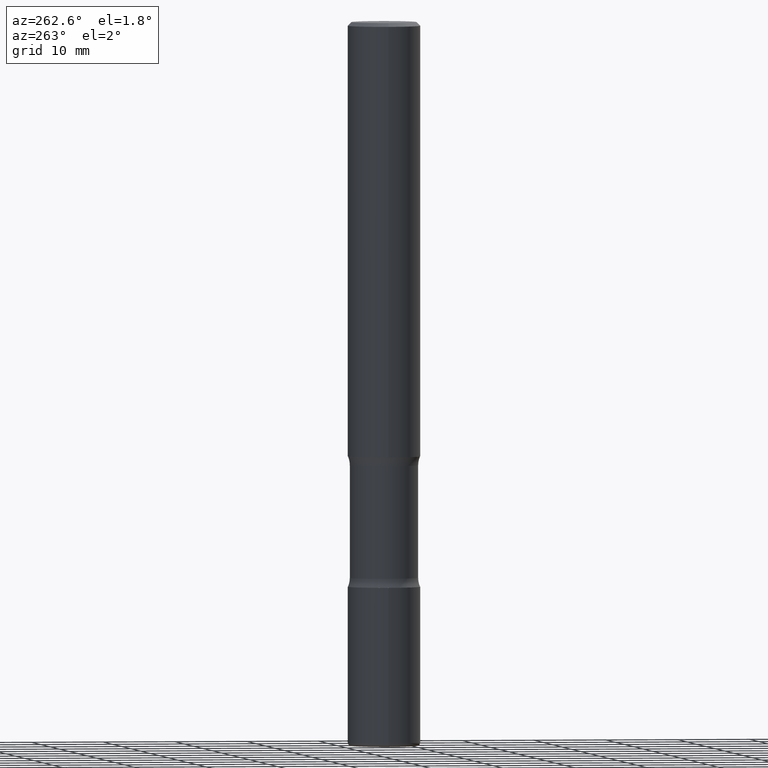
[diagram: clean part render]
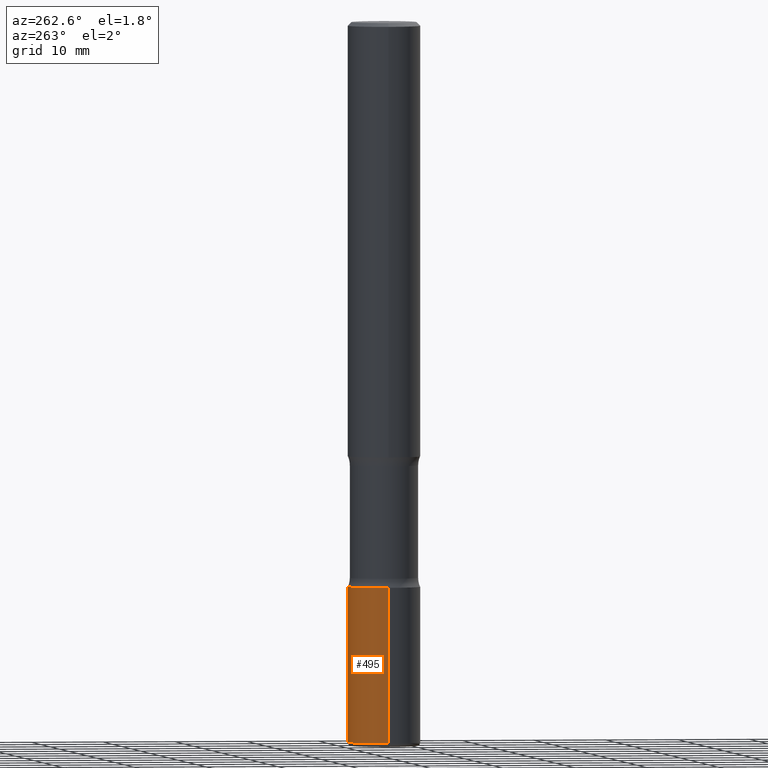
[diagram: same view with one face highlighted and labeled with its STEP entity id]
A machine part, auxiliary view. The second image highlights one B-rep face of the part: STEP entity #495.
In plain terms, the highlighted cylindrical surface (edge-blend (fillet) strip) has radius 5 mm, axis along (-0, 0, 1).
Its self-contained STEP definition (entity closure, byte-faithful):
#7 = DIRECTION ( 'NONE',  ( -2.445468806185136877E-29, 3.491481338843145188E-15, 1.000000000000000000 ) ) ;
#21 = DIRECTION ( 'NONE',  ( 1.000000000000000000, -6.982962677686265133E-15, 0.000000000000000000 ) ) ;
#25 = CYLINDRICAL_SURFACE ( 'NONE', #207, 0.1968500000000001360 ) ;
#46 = LINE ( 'NONE', #214, #151 ) ;
#69 = VERTEX_POINT ( 'NONE', #515 ) ;
#79 = DIRECTION ( 'NONE',  ( -2.445468806185136597E-29, 3.491481338843145583E-15, 1.000000000000000000 ) ) ;
#103 = CARTESIAN_POINT ( 'NONE',  ( 0.000000000000000000, 0.000000000000000000, 0.000000000000000000 ) ) ;
#104 = AXIS2_PLACEMENT_3D ( 'NONE', #339, #79, #517 ) ;
#127 = LINE ( 'NONE', #379, #441 ) ;
#130 = VERTEX_POINT ( 'NONE', #523 ) ;
#144 = CIRCLE ( 'NONE', #104, 0.1968500000000001915 ) ;
#151 = VECTOR ( 'NONE', #7, 39.37007874015748143 ) ;
#167 = ORIENTED_EDGE ( 'NONE', *, *, #389, .F. ) ;
#171 = EDGE_CURVE ( 'NONE', #475, #69, #46, .T. ) ;
#181 = CARTESIAN_POINT ( 'NONE',  ( 9.579634954469036932E-29, -1.367717984865025539E-14, -3.917300000000000448 ) ) ;
#207 = AXIS2_PLACEMENT_3D ( 'NONE', #103, #446, #532 ) ;
#211 = ORIENTED_EDGE ( 'NONE', *, *, #242, .F. ) ;
#214 = CARTESIAN_POINT ( 'NONE',  ( -0.1968500000000001360, 1.398703375343758182E-15, -9.682923725166790684E-30 ) ) ;
#242 = EDGE_CURVE ( 'NONE', #476, #130, #127, .T. ) ;
#247 = CARTESIAN_POINT ( 'NONE',  ( 0.1968500000000000805, -1.505177605175279857E-14, -3.917300000000000448 ) ) ;
#339 = CARTESIAN_POINT ( 'NONE',  ( 7.509790156913936305E-29, -1.072199004345341739E-14, -3.070900000000000407 ) ) ;
#373 = AXIS2_PLACEMENT_3D ( 'NONE', #181, #407, #21 ) ;
#379 = CARTESIAN_POINT ( 'NONE',  ( 0.1968500000000001360, -1.374596203102542594E-15, 9.598753983154306463E-30 ) ) ;
#389 = EDGE_CURVE ( 'NONE', #130, #69, #144, .T. ) ;
#399 = ORIENTED_EDGE ( 'NONE', *, *, #171, .T. ) ;
#407 = DIRECTION ( 'NONE',  ( -2.445468806185136597E-29, 3.491481338843145583E-15, 1.000000000000000000 ) ) ;
#424 = DIRECTION ( 'NONE',  ( -2.445468806185136877E-29, 3.491481338843145188E-15, 1.000000000000000000 ) ) ;
#441 = VECTOR ( 'NONE', #424, 39.37007874015748143 ) ;
#446 = DIRECTION ( 'NONE',  ( -2.445468806185136597E-29, 3.491481338843145583E-15, 1.000000000000000000 ) ) ;
#454 = EDGE_LOOP ( 'NONE', ( #538, #399, #167, #211 ) ) ;
#475 = VERTEX_POINT ( 'NONE', #480 ) ;
#476 = VERTEX_POINT ( 'NONE', #247 ) ;
#480 = CARTESIAN_POINT ( 'NONE',  ( -0.1968500000000000805, -1.227847647330649996E-14, -3.917300000000000448 ) ) ;
#495 = ADVANCED_FACE ( 'NONE', ( #555 ), #25, .T. ) ;
#506 = CIRCLE ( 'NONE', #373, 0.1968500000000001082 ) ;
#515 = CARTESIAN_POINT ( 'NONE',  ( -0.1968500000000001915, -1.080088157070807781E-14, -3.070900000000000407 ) ) ;
#517 = DIRECTION ( 'NONE',  ( 1.000000000000000000, -6.982962677686272233E-15, 0.000000000000000000 ) ) ;
#523 = CARTESIAN_POINT ( 'NONE',  ( 0.1968500000000001915, -1.209658624655596058E-14, -3.070900000000000407 ) ) ;
#531 = EDGE_CURVE ( 'NONE', #476, #475, #506, .T. ) ;
#532 = DIRECTION ( 'NONE',  ( 1.000000000000000000, -6.982962677686266711E-15, 4.876176775795935793E-29 ) ) ;
#538 = ORIENTED_EDGE ( 'NONE', *, *, #531, .T. ) ;
#555 = FACE_OUTER_BOUND ( 'NONE', #454, .T. ) ;